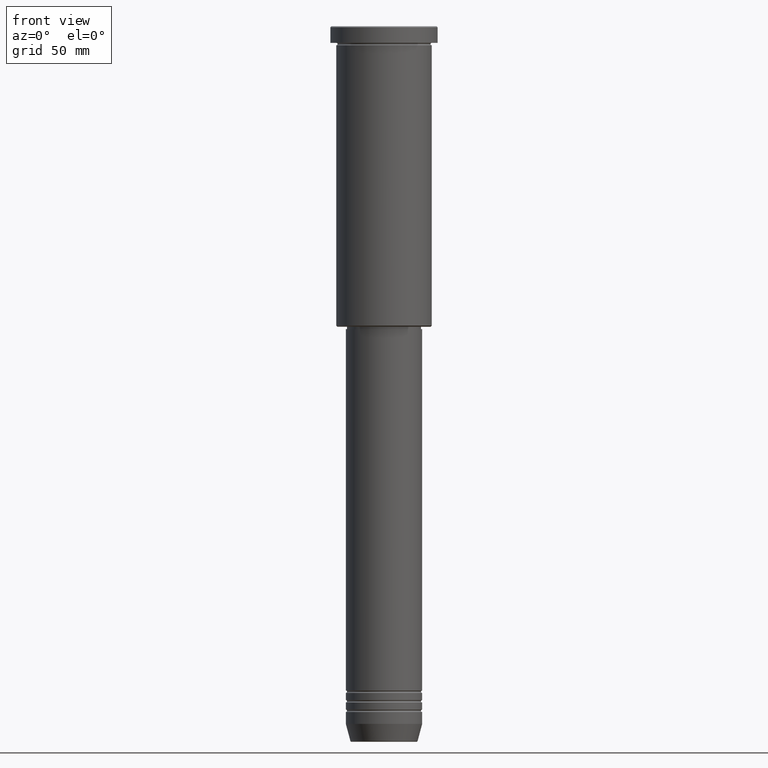
[diagram: clean part render]
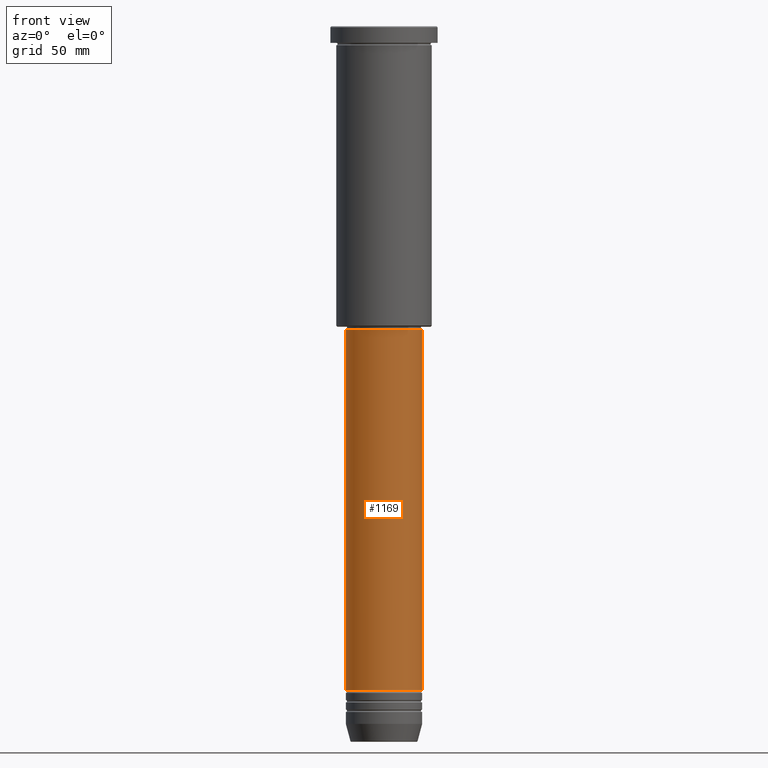
[diagram: same view with one face highlighted and labeled with its STEP entity id]
A machine part, front view. The second image highlights one B-rep face of the part: STEP entity #1169.
In plain terms, the highlighted cylindrical surface (partial cylindrical patch) has radius 16 mm, axis along (-0, -0, 1).
Its self-contained STEP definition (entity closure, byte-faithful):
#59 = ORIENTED_EDGE ( 'NONE', *, *, #762, .F. ) ;
#98 = ORIENTED_EDGE ( 'NONE', *, *, #300, .T. ) ;
#106 = LINE ( 'NONE', #1113, #589 ) ;
#177 = EDGE_CURVE ( 'NONE', #865, #344, #387, .T. ) ;
#191 = ORIENTED_EDGE ( 'NONE', *, *, #422, .T. ) ;
#203 = CARTESIAN_POINT ( 'NONE',  ( -16.00000000000000000, 1.959434878635765131E-15, -127.0000000000000000 ) ) ;
#217 = DIRECTION ( 'NONE',  ( -0.000000000000000000, -0.000000000000000000, 1.000000000000000000 ) ) ;
#228 = ORIENTED_EDGE ( 'NONE', *, *, #177, .F. ) ;
#278 = VERTEX_POINT ( 'NONE', #602 ) ;
#300 = EDGE_CURVE ( 'NONE', #1084, #278, #106, .T. ) ;
#311 = DIRECTION ( 'NONE',  ( 1.000000000000000000, 0.000000000000000000, 0.000000000000000000 ) ) ;
#328 = DIRECTION ( 'NONE',  ( 1.000000000000000000, 0.000000000000000000, 0.000000000000000000 ) ) ;
#344 = VERTEX_POINT ( 'NONE', #203 ) ;
#346 = DIRECTION ( 'NONE',  ( -0.000000000000000000, -0.000000000000000000, 1.000000000000000000 ) ) ;
#366 = CARTESIAN_POINT ( 'NONE',  ( 16.00000000000000000, 0.000000000000000000, -278.4999999999999432 ) ) ;
#387 = LINE ( 'NONE', #586, #732 ) ;
#391 = FACE_OUTER_BOUND ( 'NONE', #702, .T. ) ;
#418 = DIRECTION ( 'NONE',  ( -0.000000000000000000, -0.000000000000000000, 1.000000000000000000 ) ) ;
#422 = EDGE_CURVE ( 'NONE', #865, #1084, #1086, .T. ) ;
#531 = AXIS2_PLACEMENT_3D ( 'NONE', #971, #418, #328 ) ;
#564 = AXIS2_PLACEMENT_3D ( 'NONE', #1159, #346, #703 ) ;
#586 = CARTESIAN_POINT ( 'NONE',  ( -16.00000000000000000, 1.959434878635765131E-15, 0.000000000000000000 ) ) ;
#589 = VECTOR ( 'NONE', #839, 1000.000000000000000 ) ;
#602 = CARTESIAN_POINT ( 'NONE',  ( 16.00000000000000000, 0.000000000000000000, -127.0000000000000000 ) ) ;
#669 = CARTESIAN_POINT ( 'NONE',  ( 0.000000000000000000, 0.000000000000000000, 0.000000000000000000 ) ) ;
#702 = EDGE_LOOP ( 'NONE', ( #228, #191, #98, #59 ) ) ;
#703 = DIRECTION ( 'NONE',  ( 1.000000000000000000, 0.000000000000000000, 0.000000000000000000 ) ) ;
#732 = VECTOR ( 'NONE', #1032, 1000.000000000000000 ) ;
#738 = AXIS2_PLACEMENT_3D ( 'NONE', #669, #217, #311 ) ;
#762 = EDGE_CURVE ( 'NONE', #344, #278, #1104, .T. ) ;
#765 = CYLINDRICAL_SURFACE ( 'NONE', #738, 16.00000000000000000 ) ;
#839 = DIRECTION ( 'NONE',  ( -0.000000000000000000, -0.000000000000000000, 1.000000000000000000 ) ) ;
#859 = CARTESIAN_POINT ( 'NONE',  ( -16.00000000000000000, 1.959434878635765131E-15, -278.4999999999999432 ) ) ;
#865 = VERTEX_POINT ( 'NONE', #859 ) ;
#971 = CARTESIAN_POINT ( 'NONE',  ( 0.000000000000000000, 0.000000000000000000, -127.0000000000000000 ) ) ;
#1032 = DIRECTION ( 'NONE',  ( -0.000000000000000000, -0.000000000000000000, 1.000000000000000000 ) ) ;
#1084 = VERTEX_POINT ( 'NONE', #366 ) ;
#1086 = CIRCLE ( 'NONE', #564, 16.00000000000000000 ) ;
#1104 = CIRCLE ( 'NONE', #531, 16.00000000000000000 ) ;
#1113 = CARTESIAN_POINT ( 'NONE',  ( 16.00000000000000000, 0.000000000000000000, 0.000000000000000000 ) ) ;
#1159 = CARTESIAN_POINT ( 'NONE',  ( 0.000000000000000000, 0.000000000000000000, -278.4999999999999432 ) ) ;
#1169 = ADVANCED_FACE ( 'NONE', ( #391 ), #765, .T. ) ;